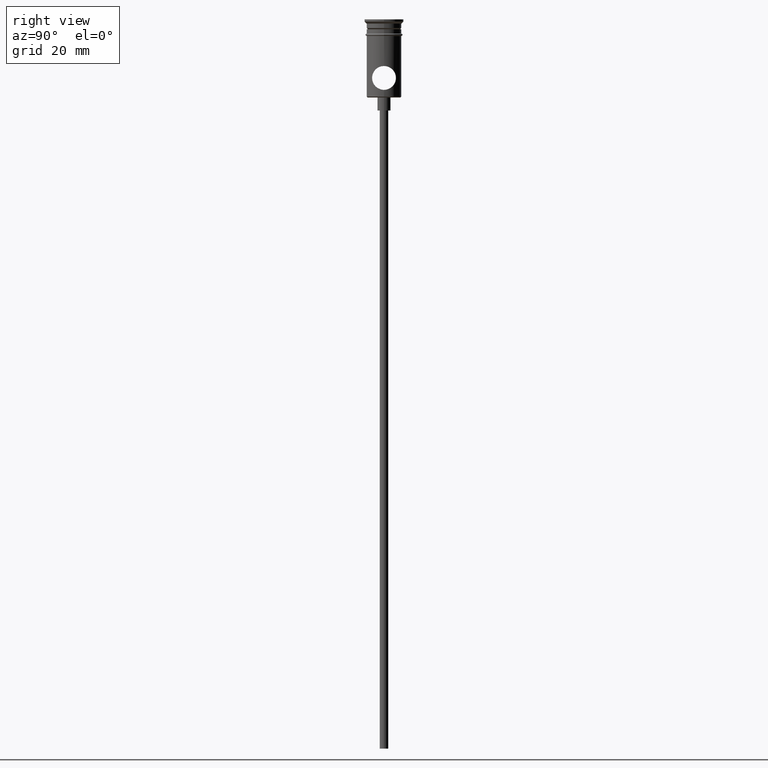
[diagram: clean part render]
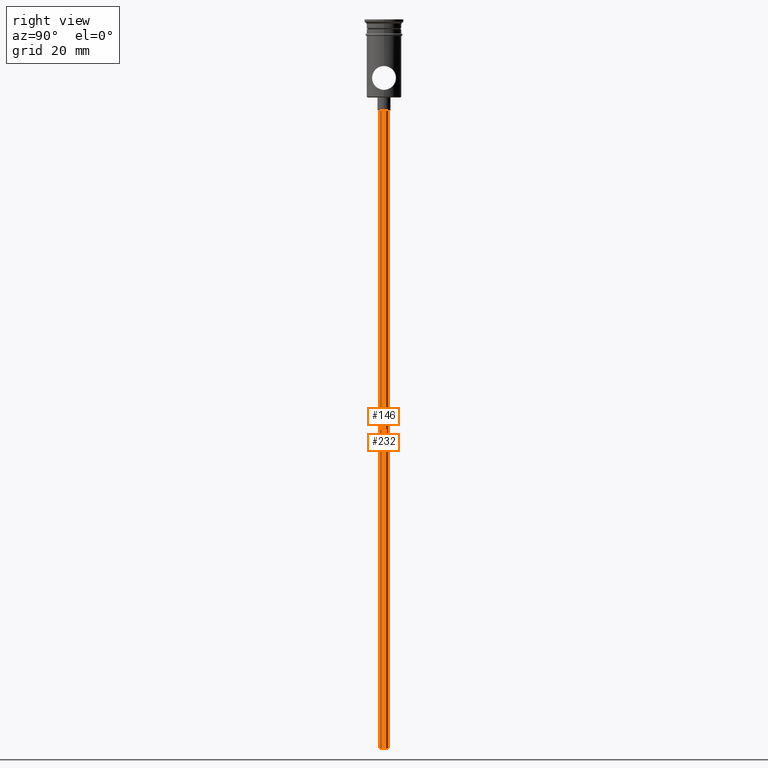
[diagram: same view with one multi-face feature highlighted, each face labeled with its STEP entity id]
A machine part, right view. The highlighted faces form ONE feature: a constant-radius fillet chain: 2 tangent blend faces with common blend radius 1 mm. The faces share edges in the B-rep.
Their STEP definitions:
[1] entity #146 (Cylinder):
#29 = EDGE_CURVE ( 'NONE', #419, #1236, #796, .T. ) ;
#54 = ORIENTED_EDGE ( 'NONE', *, *, #729, .F. ) ;
#84 = CARTESIAN_POINT ( 'NONE',  ( 0.000000000000000000, 0.000000000000000000, -167.9999999999999716 ) ) ;
#103 = CARTESIAN_POINT ( 'NONE',  ( -0.9999999999999997780, 1.224646799147352961E-16, -167.9999999999999716 ) ) ;
#129 = CIRCLE ( 'NONE', #1213, 0.9999999999999997780 ) ;
#146 = ADVANCED_FACE ( 'NONE', ( #1044 ), #538, .T. ) ;
#155 = LINE ( 'NONE', #586, #567 ) ;
#193 = ORIENTED_EDGE ( 'NONE', *, *, #29, .T. ) ;
#219 = CARTESIAN_POINT ( 'NONE',  ( -0.9999999999999997780, 1.224646799147352961E-16, -20.99999999999999645 ) ) ;
#229 = DIRECTION ( 'NONE',  ( 1.000000000000000000, 0.000000000000000000, 0.000000000000000000 ) ) ;
#419 = VERTEX_POINT ( 'NONE', #1124 ) ;
#485 = ORIENTED_EDGE ( 'NONE', *, *, #852, .F. ) ;
#506 = DIRECTION ( 'NONE',  ( 0.000000000000000000, 0.000000000000000000, -1.000000000000000000 ) ) ;
#527 = DIRECTION ( 'NONE',  ( 0.000000000000000000, 0.000000000000000000, -1.000000000000000000 ) ) ;
#538 = CYLINDRICAL_SURFACE ( 'NONE', #1367, 0.9999999999999997780 ) ;
#542 = VECTOR ( 'NONE', #1065, 1000.000000000000000 ) ;
#557 = CARTESIAN_POINT ( 'NONE',  ( 0.000000000000000000, 0.000000000000000000, -167.9999999999999716 ) ) ;
#567 = VECTOR ( 'NONE', #1054, 1000.000000000000000 ) ;
#573 = EDGE_CURVE ( 'NONE', #732, #419, #155, .T. ) ;
#586 = CARTESIAN_POINT ( 'NONE',  ( 0.9999999999999997780, 0.000000000000000000, -167.9999999999999716 ) ) ;
#729 = EDGE_CURVE ( 'NONE', #732, #768, #129, .T. ) ;
#732 = VERTEX_POINT ( 'NONE', #1302 ) ;
#768 = VERTEX_POINT ( 'NONE', #103 ) ;
#793 = AXIS2_PLACEMENT_3D ( 'NONE', #1181, #506, #1078 ) ;
#796 = CIRCLE ( 'NONE', #793, 0.9999999999999997780 ) ;
#842 = LINE ( 'NONE', #1289, #542 ) ;
#852 = EDGE_CURVE ( 'NONE', #768, #1236, #842, .T. ) ;
#1044 = FACE_OUTER_BOUND ( 'NONE', #1379, .T. ) ;
#1054 = DIRECTION ( 'NONE',  ( -0.000000000000000000, -0.000000000000000000, 1.000000000000000000 ) ) ;
#1065 = DIRECTION ( 'NONE',  ( -0.000000000000000000, -0.000000000000000000, 1.000000000000000000 ) ) ;
#1078 = DIRECTION ( 'NONE',  ( -1.000000000000000000, 0.000000000000000000, 0.000000000000000000 ) ) ;
#1124 = CARTESIAN_POINT ( 'NONE',  ( 0.9999999999999997780, 0.000000000000000000, -20.99999999999999645 ) ) ;
#1181 = CARTESIAN_POINT ( 'NONE',  ( 0.000000000000000000, 0.000000000000000000, -20.99999999999999645 ) ) ;
#1182 = ORIENTED_EDGE ( 'NONE', *, *, #573, .T. ) ;
#1184 = DIRECTION ( 'NONE',  ( -1.000000000000000000, 0.000000000000000000, 0.000000000000000000 ) ) ;
#1213 = AXIS2_PLACEMENT_3D ( 'NONE', #84, #527, #1184 ) ;
#1236 = VERTEX_POINT ( 'NONE', #219 ) ;
#1289 = CARTESIAN_POINT ( 'NONE',  ( -0.9999999999999997780, 1.224646799147352961E-16, -167.9999999999999716 ) ) ;
#1302 = CARTESIAN_POINT ( 'NONE',  ( 0.9999999999999997780, 0.000000000000000000, -167.9999999999999716 ) ) ;
#1321 = DIRECTION ( 'NONE',  ( -0.000000000000000000, -0.000000000000000000, 1.000000000000000000 ) ) ;
#1367 = AXIS2_PLACEMENT_3D ( 'NONE', #557, #1321, #229 ) ;
#1379 = EDGE_LOOP ( 'NONE', ( #485, #54, #1182, #193 ) ) ;
[2] entity #232 (Cylinder):
#45 = CYLINDRICAL_SURFACE ( 'NONE', #173, 0.9999999999999997780 ) ;
#103 = CARTESIAN_POINT ( 'NONE',  ( -0.9999999999999997780, 1.224646799147352961E-16, -167.9999999999999716 ) ) ;
#152 = AXIS2_PLACEMENT_3D ( 'NONE', #267, #598, #814 ) ;
#155 = LINE ( 'NONE', #586, #567 ) ;
#163 = EDGE_CURVE ( 'NONE', #768, #732, #769, .T. ) ;
#173 = AXIS2_PLACEMENT_3D ( 'NONE', #484, #381, #605 ) ;
#219 = CARTESIAN_POINT ( 'NONE',  ( -0.9999999999999997780, 1.224646799147352961E-16, -20.99999999999999645 ) ) ;
#232 = ADVANCED_FACE ( 'NONE', ( #1352 ), #45, .T. ) ;
#238 = ORIENTED_EDGE ( 'NONE', *, *, #852, .T. ) ;
#251 = ORIENTED_EDGE ( 'NONE', *, *, #573, .F. ) ;
#267 = CARTESIAN_POINT ( 'NONE',  ( 0.000000000000000000, 0.000000000000000000, -20.99999999999999645 ) ) ;
#381 = DIRECTION ( 'NONE',  ( -0.000000000000000000, -0.000000000000000000, 1.000000000000000000 ) ) ;
#419 = VERTEX_POINT ( 'NONE', #1124 ) ;
#484 = CARTESIAN_POINT ( 'NONE',  ( 0.000000000000000000, 0.000000000000000000, -167.9999999999999716 ) ) ;
#542 = VECTOR ( 'NONE', #1065, 1000.000000000000000 ) ;
#567 = VECTOR ( 'NONE', #1054, 1000.000000000000000 ) ;
#573 = EDGE_CURVE ( 'NONE', #732, #419, #155, .T. ) ;
#586 = CARTESIAN_POINT ( 'NONE',  ( 0.9999999999999997780, 0.000000000000000000, -167.9999999999999716 ) ) ;
#598 = DIRECTION ( 'NONE',  ( 0.000000000000000000, 0.000000000000000000, -1.000000000000000000 ) ) ;
#605 = DIRECTION ( 'NONE',  ( 1.000000000000000000, 0.000000000000000000, 0.000000000000000000 ) ) ;
#684 = ORIENTED_EDGE ( 'NONE', *, *, #1030, .T. ) ;
#732 = VERTEX_POINT ( 'NONE', #1302 ) ;
#768 = VERTEX_POINT ( 'NONE', #103 ) ;
#769 = CIRCLE ( 'NONE', #1005, 0.9999999999999997780 ) ;
#790 = CARTESIAN_POINT ( 'NONE',  ( 0.000000000000000000, 0.000000000000000000, -167.9999999999999716 ) ) ;
#814 = DIRECTION ( 'NONE',  ( -1.000000000000000000, 0.000000000000000000, 0.000000000000000000 ) ) ;
#842 = LINE ( 'NONE', #1289, #542 ) ;
#852 = EDGE_CURVE ( 'NONE', #768, #1236, #842, .T. ) ;
#1005 = AXIS2_PLACEMENT_3D ( 'NONE', #790, #1246, #1129 ) ;
#1030 = EDGE_CURVE ( 'NONE', #1236, #419, #1263, .T. ) ;
#1054 = DIRECTION ( 'NONE',  ( -0.000000000000000000, -0.000000000000000000, 1.000000000000000000 ) ) ;
#1065 = DIRECTION ( 'NONE',  ( -0.000000000000000000, -0.000000000000000000, 1.000000000000000000 ) ) ;
#1067 = EDGE_LOOP ( 'NONE', ( #1149, #238, #684, #251 ) ) ;
#1124 = CARTESIAN_POINT ( 'NONE',  ( 0.9999999999999997780, 0.000000000000000000, -20.99999999999999645 ) ) ;
#1129 = DIRECTION ( 'NONE',  ( -1.000000000000000000, 0.000000000000000000, 0.000000000000000000 ) ) ;
#1149 = ORIENTED_EDGE ( 'NONE', *, *, #163, .F. ) ;
#1236 = VERTEX_POINT ( 'NONE', #219 ) ;
#1246 = DIRECTION ( 'NONE',  ( 0.000000000000000000, 0.000000000000000000, -1.000000000000000000 ) ) ;
#1263 = CIRCLE ( 'NONE', #152, 0.9999999999999997780 ) ;
#1289 = CARTESIAN_POINT ( 'NONE',  ( -0.9999999999999997780, 1.224646799147352961E-16, -167.9999999999999716 ) ) ;
#1302 = CARTESIAN_POINT ( 'NONE',  ( 0.9999999999999997780, 0.000000000000000000, -167.9999999999999716 ) ) ;
#1352 = FACE_OUTER_BOUND ( 'NONE', #1067, .T. ) ;